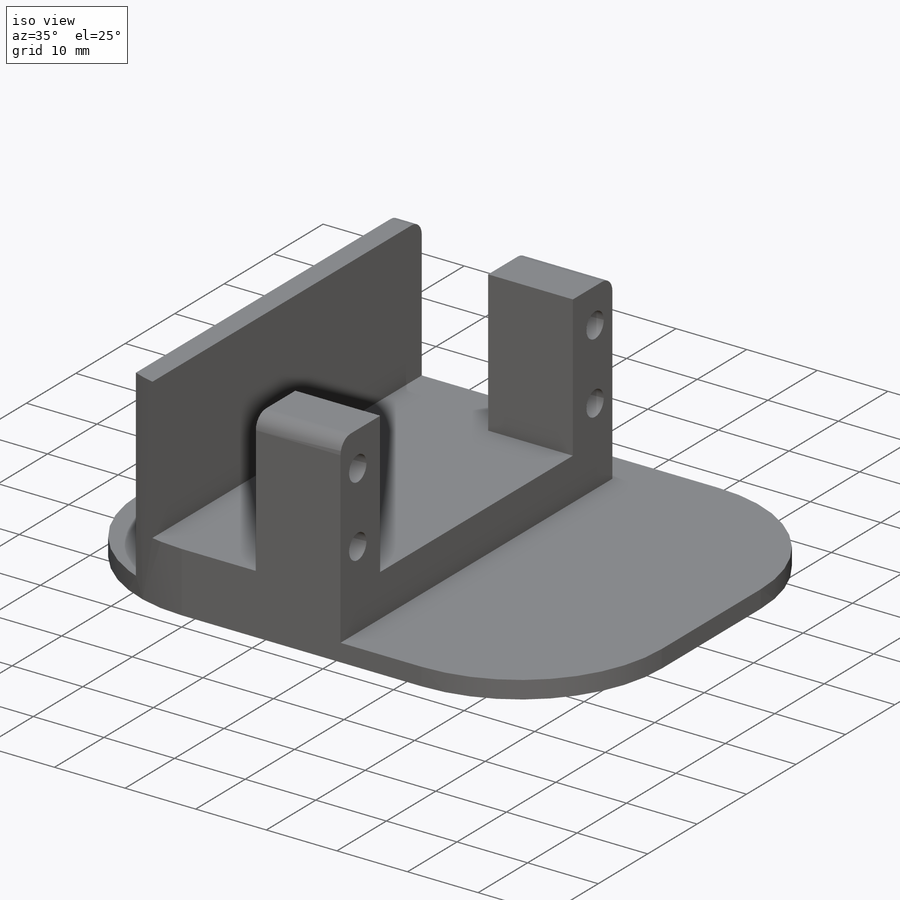
[diagram: iso view]
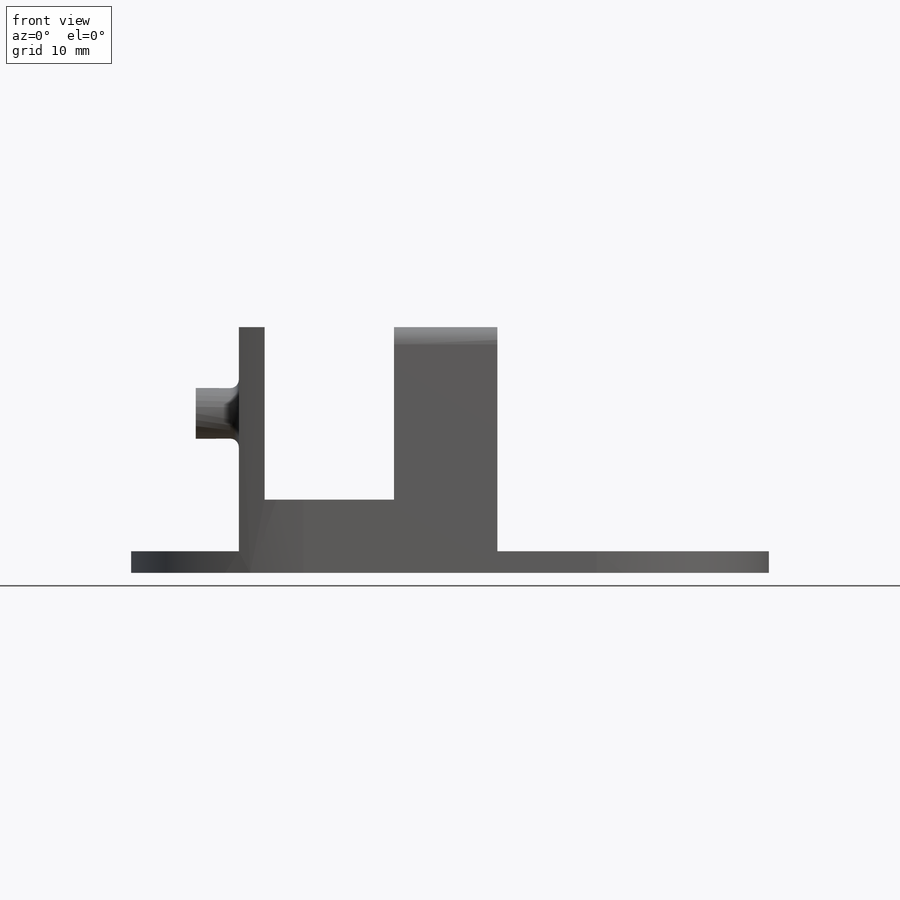
[diagram: front view]
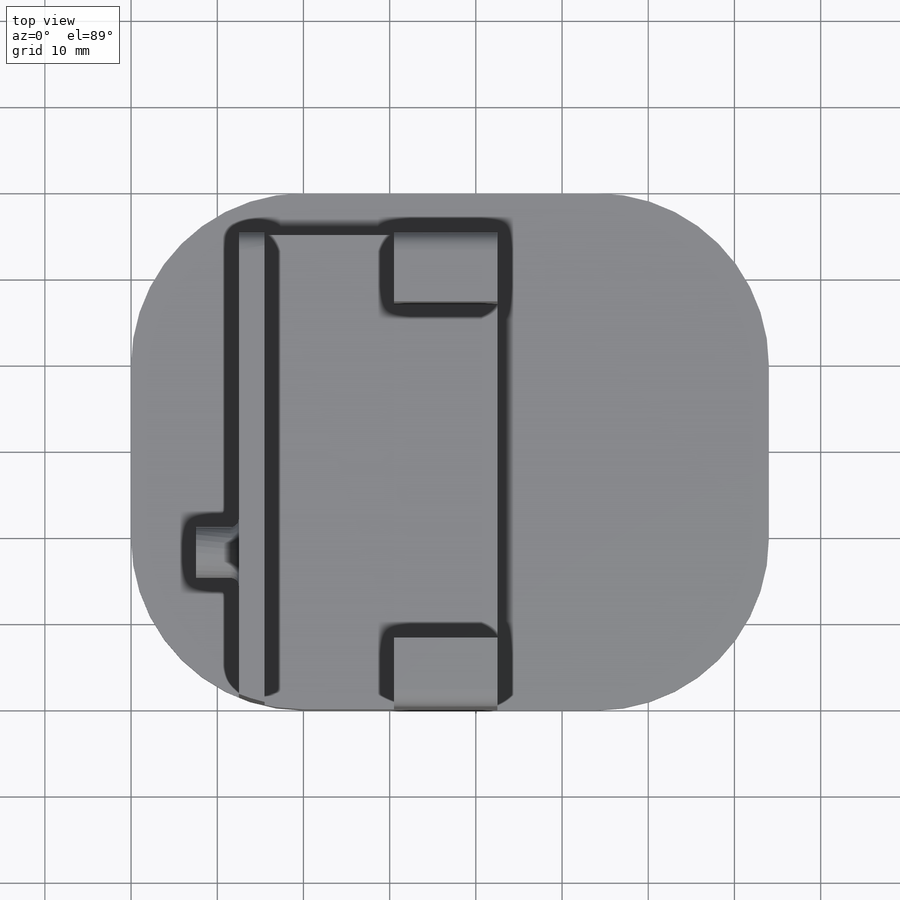
[diagram: top view]
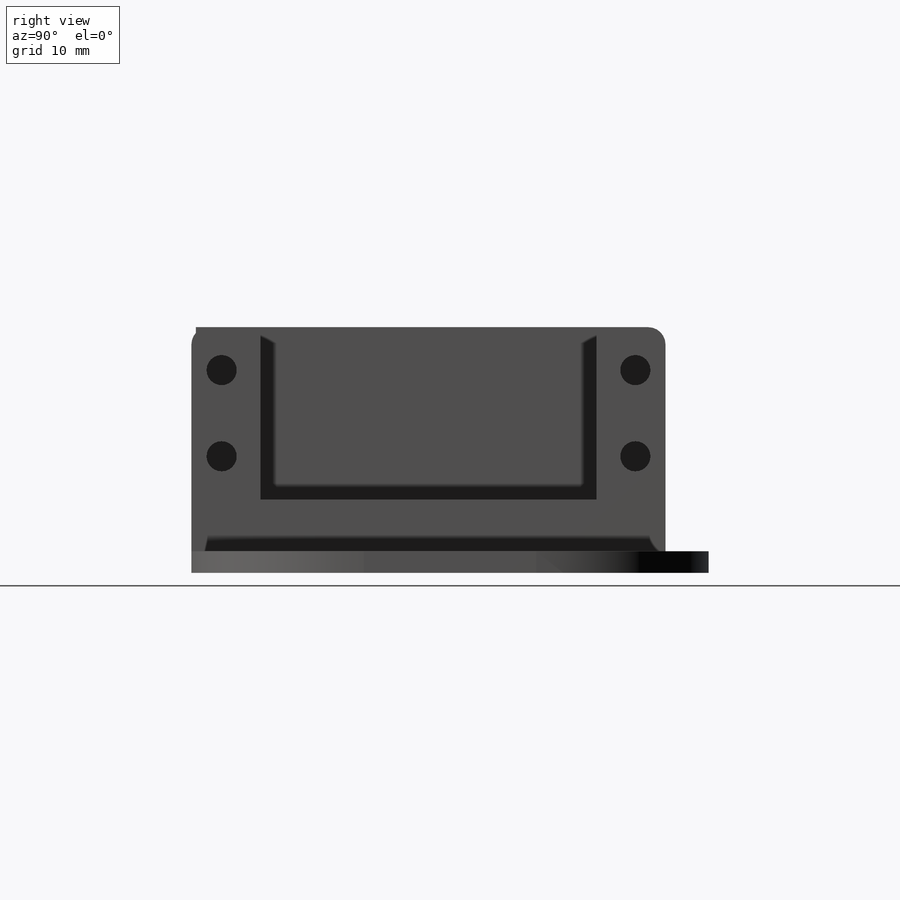
[diagram: right view]
SOLIDWORKS PART (.sldprt)
format: sldprt  version: not decoded by parser v0  size: 283,648 bytes
history: native  units: mm
features: sketch x5, extrude x4, plane x3, fillet x3, material x1, cut_extrude x1 (+10 scaffold rows collapsed)
feature tree (27):
  scaffold x10  (default folders/planes/origin — collapsed)
  material  "Matériau <non spécifié>"
  plane  "Plan de face"
  plane  "Plan de dessus"
  plane  "Plan de droite"
  sketch  "Esquisse1"  dims[D1=60.0mm D2=74.0mm]
  extrude  "Boss.-Extru.1"  Depth=2.5mm
  sketch  "Esquisse2"  dims[D1=30.0mm D2=55.0mm D3=5.0mm D4=12.5mm]
  extrude  "Boss.-Extru.2"  Depth=6mm
  sketch  "Esquisse4"  dims[D1=8.0mm D2=8.0mm D3=27.0mm D4=15.0mm D5=15.0mm]
  extrude  "Boss.-Extru.3"  Depth=20mm
  sketch  "Esquisse5"  dims[c1.D1=3.5mm c1.D2=~4.329906mm c1.D3=3.5mm c1.D4=3.5mm c1.D5=3.5mm c1.D6=3.5mm c1.D7=~4.329906mm c1.D8=3.5mm c1.D9=3.5mm c1.D10=3.5mm c1.D11=3.5mm c1.D12=3.5mm c1.D13=3.5mm c1.D14=3.5mm c2.D10=3.5mm c2.D2=3.5mm c2.D5=3.5mm c2.D6=3.5mm c2.D7=3.5mm c2.D8=3.5mm c3.D10=5.0mm c3.D11=10.0mm c3.D12=10.0mm c3.D13=5.0mm c3.D14=5.0mm c4.D10=5.0mm]
  cut_extrude  "Enlèv. mat.-Extru.1"  Depth=20mm
  sketch  "Esquisse6"  dims[c1.D1=5.9mm c1.D2=5.9mm c1.D3=5.9mm c2.D2=10.0mm c2.D3=18.0mm]
  extrude  "Boss.-Extru.4"  Depth=5mm
  fillet  "Congé1"  Radius=1mm
  fillet  "Congé2"  Radius=20mm
  fillet  "Congé3"  Radius=2mm
decode coverage: 13 of 13 modeling features carry decoded parameters
note: ~ marks probable driven/reference dimensions
note: suppression state not decoded; provenance and decode notes live in map.json
